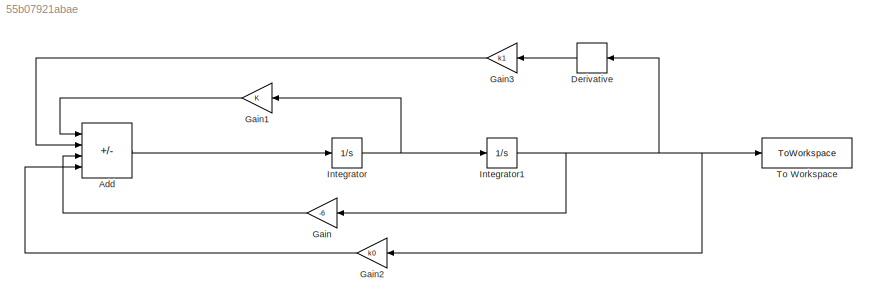
MODEL slx_55b07921abae
KIND model
CONFIG AbsTol = auto
CONFIG EnableMultiTasking = off
CONFIG FixedStep = auto
CONFIG MaxStep = auto
CONFIG MinStep = auto
CONFIG RelTol = 1e-8
CONFIG SampleTimeConstraint = Unconstrained
CONFIG SolverName = VariableStepAuto
CONFIG StartTime = 0.0
CONFIG StopTime = 20.0
BLOCK [Sum] Add
  IconShape = rectangular
  Inputs = -+-+
BLOCK [Derivative] Derivative
  NameLocation = top
BLOCK [Gain] Gain
  Gain = -6
  NameLocation = top
BLOCK [Gain] Gain1
  NameLocation = top
BLOCK [Gain] Gain2
  Gain = k0
  NameLocation = top
BLOCK [Gain] Gain3
  Gain = k1
  NameLocation = top
BLOCK [Integrator] Integrator
  InitialCondition = 5
BLOCK [Integrator] Integrator1
BLOCK [ToWorkspace] To Workspace
  FixptAsFi = on
  MaxDataPoints = inf
  SampleTime = -1
  SaveFormat = Structure With Time
  VariableName = y_out
LINE Add:1 -> Integrator:1
LINE Derivative:1 -> Gain3:1
LINE Gain1:1 -> Add:1
LINE Gain2:1 -> Add:4
LINE Gain3:1 -> Add:2
LINE Gain:1 -> Add:3
NET Integrator1:1 -> Derivative:1, Gain2:1, Gain:1, To Workspace:1
NET Integrator:1 -> Gain1:1, Integrator1:1
note: NET lines group one-source signal fan-out (src -> all destinations, sorted); 1:1 wires keep LINE
